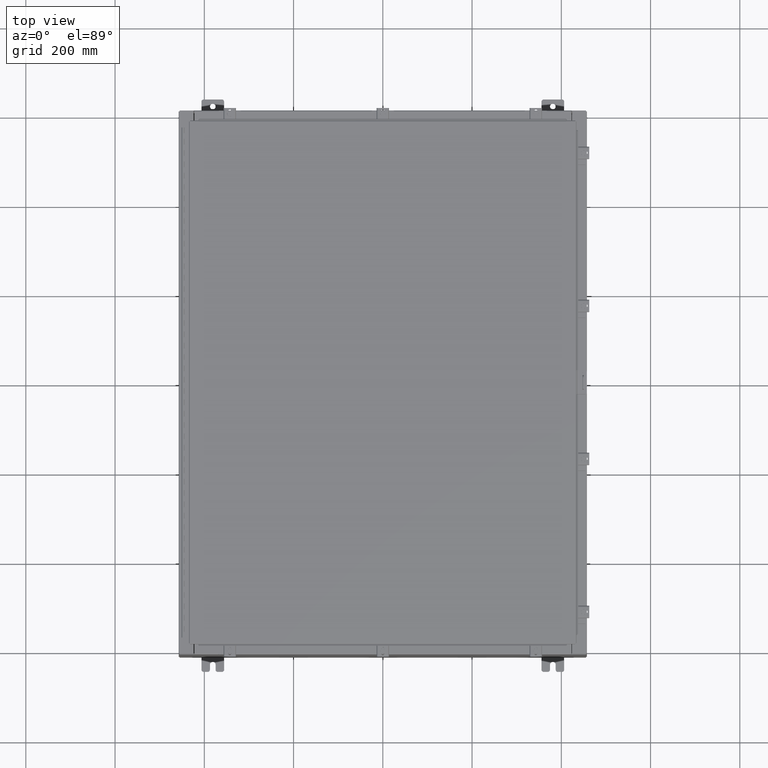
[diagram: clean part render]
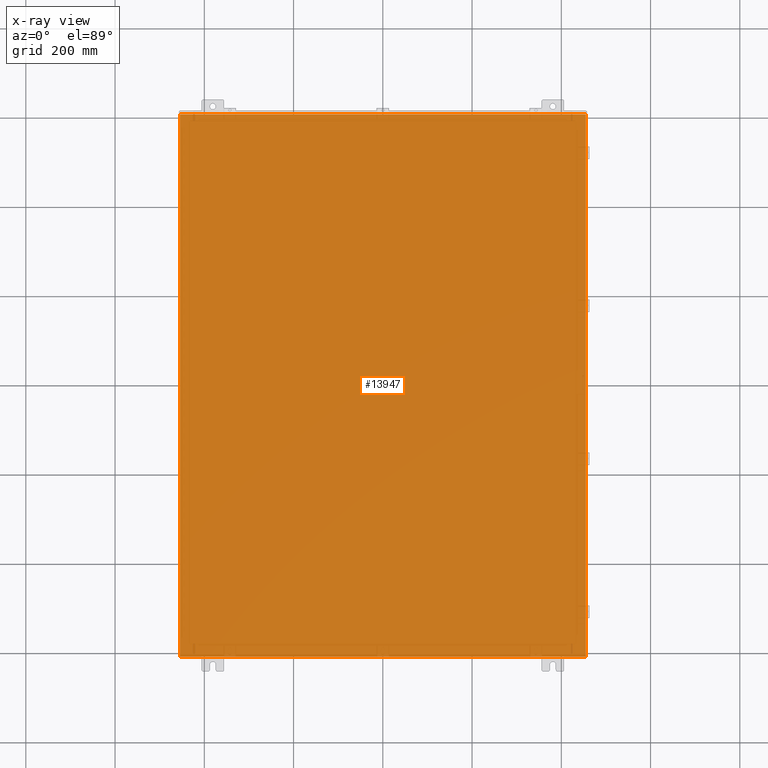
[diagram: x-ray — body ghosted, one internal face saturated and labeled with its STEP entity id]
A machine part, top view, then the same camera in x-ray: the body is ghosted and one INTERNAL B-rep face — a face not visible from any outside direction — is saturated and labeled: STEP entity #13947.
In plain terms, the highlighted planar face has unit normal (0, 0, -1).
Its self-contained STEP definition (entity closure, byte-faithful):
#2273 = DIRECTION ( 'NONE',  ( -1.000000000000000000, -0.0000000000000000000, -0.0000000000000000000 ) ) ;
#2835 = AXIS2_PLACEMENT_3D ( 'NONE', #10964, #23572, #52678 ) ;
#5072 = VECTOR ( 'NONE', #6113, 39.37007874015748100 ) ;
#5340 = CARTESIAN_POINT ( 'NONE',  ( 17.91229999999999500, -23.92529999999998900, -8.238229105893793900E-016 ) ) ;
#6113 = DIRECTION ( 'NONE',  ( -0.0000000000000000000, -1.000000000000000000, -8.208677865577646300E-017 ) ) ;
#6135 = ORIENTED_EDGE ( 'NONE', *, *, #32752, .T. ) ;
#7330 = ORIENTED_EDGE ( 'NONE', *, *, #49745, .T. ) ;
#10964 = CARTESIAN_POINT ( 'NONE',  ( 0.0000000000000000000, 0.0000000000000000000, 0.0000000000000000000 ) ) ;
#13947 = ADVANCED_FACE ( 'NONE', ( #44601 ), #48517, .F. ) ;
#18024 = LINE ( 'NONE', #35413, #40283 ) ;
#19084 = VECTOR ( 'NONE', #51277, 39.37007874015748100 ) ;
#21384 = VERTEX_POINT ( 'NONE', #5340 ) ;
#23572 = DIRECTION ( 'NONE',  ( 0.0000000000000000000, 0.0000000000000000000, -1.000000000000000000 ) ) ;
#28611 = LINE ( 'NONE', #51827, #5072 ) ;
#31074 = EDGE_CURVE ( 'NONE', #43570, #21384, #28611, .T. ) ;
#32752 = EDGE_CURVE ( 'NONE', #52519, #21384, #37135, .T. ) ;
#34542 = VECTOR ( 'NONE', #52470, 39.37007874015748100 ) ;
#35413 = CARTESIAN_POINT ( 'NONE',  ( -18.00000000000000400, 23.92530000000000000, 0.0000000000000000000 ) ) ;
#35630 = ORIENTED_EDGE ( 'NONE', *, *, #46335, .F. ) ;
#37135 = LINE ( 'NONE', #48276, #34542 ) ;
#38650 = CARTESIAN_POINT ( 'NONE',  ( 17.91229999999999500, 23.92529999999998600, 3.103208580302999200E-015 ) ) ;
#39285 = EDGE_LOOP ( 'NONE', ( #35630, #6135, #48318, #7330 ) ) ;
#40283 = VECTOR ( 'NONE', #2273, 39.37007874015748100 ) ;
#42613 = VERTEX_POINT ( 'NONE', #42772 ) ;
#42772 = CARTESIAN_POINT ( 'NONE',  ( -17.91230000000000500, 23.92529999999998900, 4.481938114605432000E-017 ) ) ;
#43570 = VERTEX_POINT ( 'NONE', #38650 ) ;
#44601 = FACE_OUTER_BOUND ( 'NONE', #39285, .T. ) ;
#45203 = CARTESIAN_POINT ( 'NONE',  ( -17.91230000000000500, -23.92529999999998600, 4.481938114605432000E-017 ) ) ;
#46335 = EDGE_CURVE ( 'NONE', #52519, #42613, #52366, .T. ) ;
#47114 = CARTESIAN_POINT ( 'NONE',  ( -17.91230000000000500, -23.92529999999998900, 4.481938114605432000E-017 ) ) ;
#48276 = CARTESIAN_POINT ( 'NONE',  ( -18.00000000000000400, -23.92530000000000400, 0.0000000000000000000 ) ) ;
#48318 = ORIENTED_EDGE ( 'NONE', *, *, #31074, .F. ) ;
#48517 = PLANE ( 'NONE',  #2835 ) ;
#49745 = EDGE_CURVE ( 'NONE', #43570, #42613, #18024, .T. ) ;
#51277 = DIRECTION ( 'NONE',  ( -0.0000000000000000000, 1.000000000000000000, -0.0000000000000000000 ) ) ;
#51827 = CARTESIAN_POINT ( 'NONE',  ( 17.91229999999999500, 23.92529999999998900, 3.103208580302999200E-015 ) ) ;
#52366 = LINE ( 'NONE', #47114, #19084 ) ;
#52470 = DIRECTION ( 'NONE',  ( 1.000000000000000000, 1.214154663850783700E-016, 0.0000000000000000000 ) ) ;
#52519 = VERTEX_POINT ( 'NONE', #45203 ) ;
#52678 = DIRECTION ( 'NONE',  ( -1.000000000000000000, 0.0000000000000000000, -0.0000000000000000000 ) ) ;